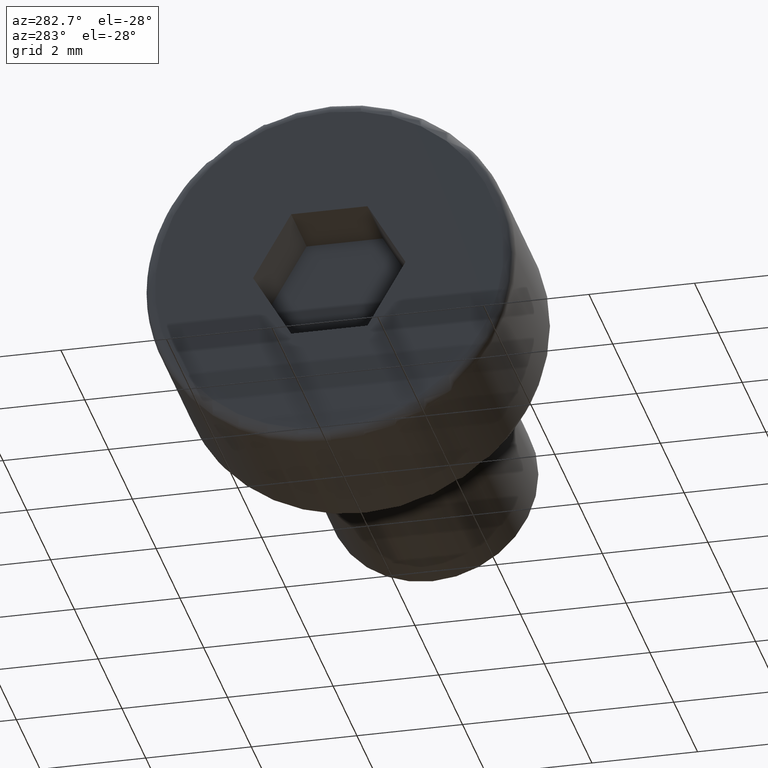
[diagram: clean part render]
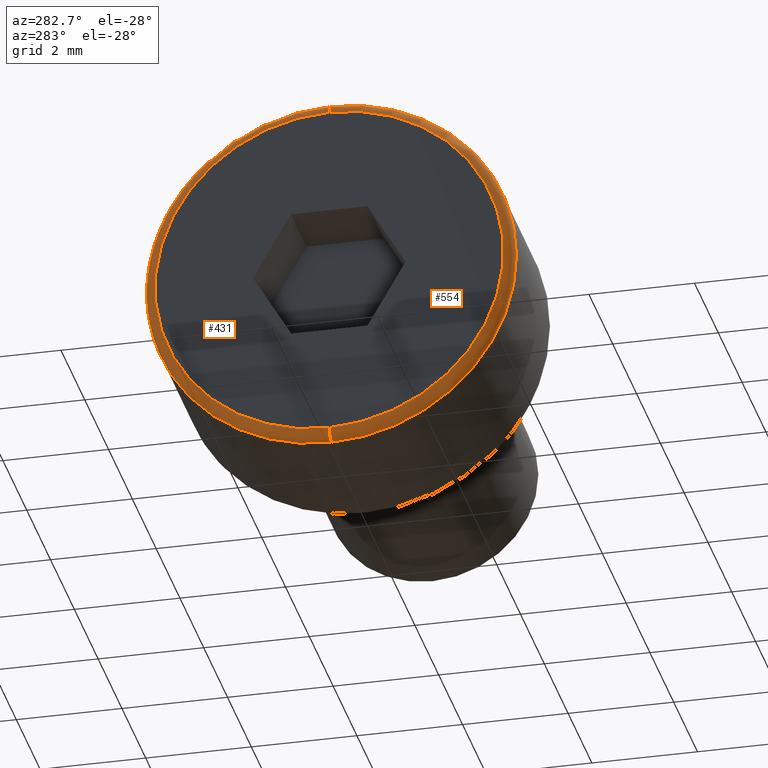
[diagram: same view with one multi-face feature highlighted, each face labeled with its STEP entity id]
A machine part, auxiliary view. The highlighted faces form ONE feature: a constant-radius fillet chain: 2 tangent blend faces with common blend radius 0.2 mm. The faces share edges in the B-rep.
Their STEP definitions:
[1] entity #554 (Torus):
#11 = DIRECTION ( 'NONE',  ( -1.000000000000000000, -0.0000000000000000000, -0.0000000000000000000 ) ) ;
#69 = DIRECTION ( 'NONE',  ( 0.0000000000000000000, 0.0000000000000000000, -1.000000000000000000 ) ) ;
#89 = DIRECTION ( 'NONE',  ( 0.0000000000000000000, 0.0000000000000000000, -1.000000000000000000 ) ) ;
#133 = CARTESIAN_POINT ( 'NONE',  ( -3.200000000000000200, 4.163799117101001500E-016, 3.300000000000000300 ) ) ;
#153 = DIRECTION ( 'NONE',  ( 0.0000000000000000000, 1.000000000000000000, -1.224646799147353200E-016 ) ) ;
#203 = FACE_OUTER_BOUND ( 'NONE', #754, .T. ) ;
#224 = DIRECTION ( 'NONE',  ( 0.0000000000000000000, 0.0000000000000000000, -1.000000000000000000 ) ) ;
#228 = DIRECTION ( 'NONE',  ( 1.000000000000000000, 0.0000000000000000000, 0.0000000000000000000 ) ) ;
#241 = ORIENTED_EDGE ( 'NONE', *, *, #506, .F. ) ;
#243 = VERTEX_POINT ( 'NONE', #133 ) ;
#287 = ORIENTED_EDGE ( 'NONE', *, *, #814, .F. ) ;
#294 = DIRECTION ( 'NONE',  ( 0.0000000000000000000, 0.0000000000000000000, -1.000000000000000000 ) ) ;
#304 = CIRCLE ( 'NONE', #614, 3.300000000000000300 ) ;
#314 = CIRCLE ( 'NONE', #572, 0.2000000000000000900 ) ;
#324 = AXIS2_PLACEMENT_3D ( 'NONE', #604, #354, #294 ) ;
#331 = TOROIDAL_SURFACE ( 'NONE', #495, 3.300000000000000300, 0.2000000000000000100 ) ;
#346 = DIRECTION ( 'NONE',  ( 0.0000000000000000000, -1.000000000000000000, 0.0000000000000000000 ) ) ;
#354 = DIRECTION ( 'NONE',  ( 1.000000000000000000, 0.0000000000000000000, 0.0000000000000000000 ) ) ;
#413 = EDGE_CURVE ( 'NONE', #243, #663, #443, .T. ) ;
#441 = CARTESIAN_POINT ( 'NONE',  ( -3.000000000000000000, 4.286263797015737100E-016, 3.500000000000000400 ) ) ;
#443 = CIRCLE ( 'NONE', #715, 0.2000000000000000900 ) ;
#495 = AXIS2_PLACEMENT_3D ( 'NONE', #600, #228, #89 ) ;
#506 = EDGE_CURVE ( 'NONE', #663, #623, #537, .T. ) ;
#521 = DIRECTION ( 'NONE',  ( 0.0000000000000000000, 1.224646799147353200E-016, 1.000000000000000000 ) ) ;
#537 = CIRCLE ( 'NONE', #324, 3.500000000000000400 ) ;
#554 = ADVANCED_FACE ( 'NONE', ( #203 ), #331, .T. ) ;
#572 = AXIS2_PLACEMENT_3D ( 'NONE', #598, #346, #224 ) ;
#579 = CARTESIAN_POINT ( 'NONE',  ( -3.000000000000000000, 4.041334437186266000E-016, 3.300000000000000300 ) ) ;
#590 = EDGE_CURVE ( 'NONE', #602, #623, #314, .T. ) ;
#598 = CARTESIAN_POINT ( 'NONE',  ( -3.000000000000000000, 0.0000000000000000000, -3.300000000000000300 ) ) ;
#600 = CARTESIAN_POINT ( 'NONE',  ( -3.000000000000000000, 0.0000000000000000000, 0.0000000000000000000 ) ) ;
#602 = VERTEX_POINT ( 'NONE', #802 ) ;
#604 = CARTESIAN_POINT ( 'NONE',  ( -3.000000000000000000, 0.0000000000000000000, 0.0000000000000000000 ) ) ;
#614 = AXIS2_PLACEMENT_3D ( 'NONE', #697, #11, #69 ) ;
#623 = VERTEX_POINT ( 'NONE', #662 ) ;
#662 = CARTESIAN_POINT ( 'NONE',  ( -3.000000000000000000, 0.0000000000000000000, -3.500000000000000400 ) ) ;
#663 = VERTEX_POINT ( 'NONE', #441 ) ;
#670 = ORIENTED_EDGE ( 'NONE', *, *, #413, .F. ) ;
#697 = CARTESIAN_POINT ( 'NONE',  ( -3.200000000000000200, 0.0000000000000000000, 0.0000000000000000000 ) ) ;
#715 = AXIS2_PLACEMENT_3D ( 'NONE', #579, #153, #521 ) ;
#754 = EDGE_LOOP ( 'NONE', ( #670, #287, #779, #241 ) ) ;
#779 = ORIENTED_EDGE ( 'NONE', *, *, #590, .T. ) ;
#802 = CARTESIAN_POINT ( 'NONE',  ( -3.200000000000000200, 0.0000000000000000000, -3.300000000000000300 ) ) ;
#814 = EDGE_CURVE ( 'NONE', #602, #243, #304, .T. ) ;
[2] entity #431 (Torus):
#20 = CARTESIAN_POINT ( 'NONE',  ( -3.000000000000000000, 0.0000000000000000000, 0.0000000000000000000 ) ) ;
#31 = AXIS2_PLACEMENT_3D ( 'NONE', #650, #205, #576 ) ;
#116 = AXIS2_PLACEMENT_3D ( 'NONE', #20, #653, #149 ) ;
#133 = CARTESIAN_POINT ( 'NONE',  ( -3.200000000000000200, 4.163799117101001500E-016, 3.300000000000000300 ) ) ;
#149 = DIRECTION ( 'NONE',  ( 0.0000000000000000000, 0.0000000000000000000, -1.000000000000000000 ) ) ;
#153 = DIRECTION ( 'NONE',  ( 0.0000000000000000000, 1.000000000000000000, -1.224646799147353200E-016 ) ) ;
#179 = ORIENTED_EDGE ( 'NONE', *, *, #413, .T. ) ;
#205 = DIRECTION ( 'NONE',  ( -1.000000000000000000, -0.0000000000000000000, -0.0000000000000000000 ) ) ;
#224 = DIRECTION ( 'NONE',  ( 0.0000000000000000000, 0.0000000000000000000, -1.000000000000000000 ) ) ;
#234 = AXIS2_PLACEMENT_3D ( 'NONE', #458, #267, #370 ) ;
#243 = VERTEX_POINT ( 'NONE', #133 ) ;
#267 = DIRECTION ( 'NONE',  ( 1.000000000000000000, 0.0000000000000000000, 0.0000000000000000000 ) ) ;
#302 = CIRCLE ( 'NONE', #31, 3.300000000000000300 ) ;
#314 = CIRCLE ( 'NONE', #572, 0.2000000000000000900 ) ;
#346 = DIRECTION ( 'NONE',  ( 0.0000000000000000000, -1.000000000000000000, 0.0000000000000000000 ) ) ;
#370 = DIRECTION ( 'NONE',  ( 0.0000000000000000000, 0.0000000000000000000, -1.000000000000000000 ) ) ;
#413 = EDGE_CURVE ( 'NONE', #243, #663, #443, .T. ) ;
#423 = EDGE_CURVE ( 'NONE', #243, #602, #302, .T. ) ;
#424 = FACE_OUTER_BOUND ( 'NONE', #724, .T. ) ;
#431 = ADVANCED_FACE ( 'NONE', ( #424 ), #594, .T. ) ;
#441 = CARTESIAN_POINT ( 'NONE',  ( -3.000000000000000000, 4.286263797015737100E-016, 3.500000000000000400 ) ) ;
#443 = CIRCLE ( 'NONE', #715, 0.2000000000000000900 ) ;
#458 = CARTESIAN_POINT ( 'NONE',  ( -3.000000000000000000, 0.0000000000000000000, 0.0000000000000000000 ) ) ;
#521 = DIRECTION ( 'NONE',  ( 0.0000000000000000000, 1.224646799147353200E-016, 1.000000000000000000 ) ) ;
#572 = AXIS2_PLACEMENT_3D ( 'NONE', #598, #346, #224 ) ;
#576 = DIRECTION ( 'NONE',  ( 0.0000000000000000000, 0.0000000000000000000, -1.000000000000000000 ) ) ;
#579 = CARTESIAN_POINT ( 'NONE',  ( -3.000000000000000000, 4.041334437186266000E-016, 3.300000000000000300 ) ) ;
#590 = EDGE_CURVE ( 'NONE', #602, #623, #314, .T. ) ;
#594 = TOROIDAL_SURFACE ( 'NONE', #116, 3.300000000000000300, 0.2000000000000000100 ) ;
#598 = CARTESIAN_POINT ( 'NONE',  ( -3.000000000000000000, 0.0000000000000000000, -3.300000000000000300 ) ) ;
#602 = VERTEX_POINT ( 'NONE', #802 ) ;
#623 = VERTEX_POINT ( 'NONE', #662 ) ;
#647 = ORIENTED_EDGE ( 'NONE', *, *, #716, .F. ) ;
#650 = CARTESIAN_POINT ( 'NONE',  ( -3.200000000000000200, 0.0000000000000000000, 0.0000000000000000000 ) ) ;
#653 = DIRECTION ( 'NONE',  ( 1.000000000000000000, 0.0000000000000000000, 0.0000000000000000000 ) ) ;
#662 = CARTESIAN_POINT ( 'NONE',  ( -3.000000000000000000, 0.0000000000000000000, -3.500000000000000400 ) ) ;
#663 = VERTEX_POINT ( 'NONE', #441 ) ;
#667 = ORIENTED_EDGE ( 'NONE', *, *, #423, .F. ) ;
#709 = CIRCLE ( 'NONE', #234, 3.500000000000000400 ) ;
#715 = AXIS2_PLACEMENT_3D ( 'NONE', #579, #153, #521 ) ;
#716 = EDGE_CURVE ( 'NONE', #623, #663, #709, .T. ) ;
#723 = ORIENTED_EDGE ( 'NONE', *, *, #590, .F. ) ;
#724 = EDGE_LOOP ( 'NONE', ( #667, #179, #647, #723 ) ) ;
#802 = CARTESIAN_POINT ( 'NONE',  ( -3.200000000000000200, 0.0000000000000000000, -3.300000000000000300 ) ) ;